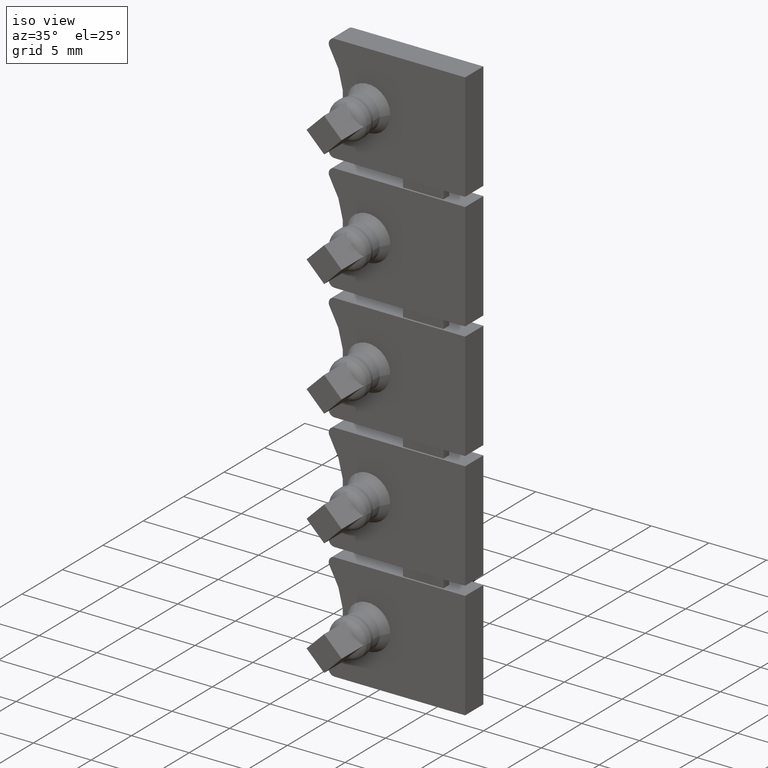
[diagram: clean part render]
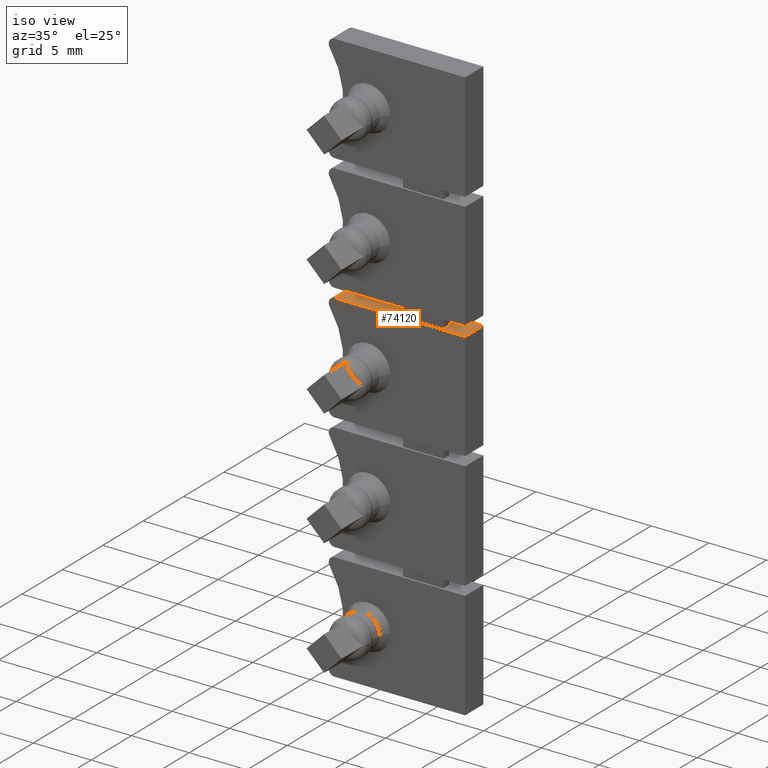
[diagram: same view with one face highlighted and labeled with its STEP entity id]
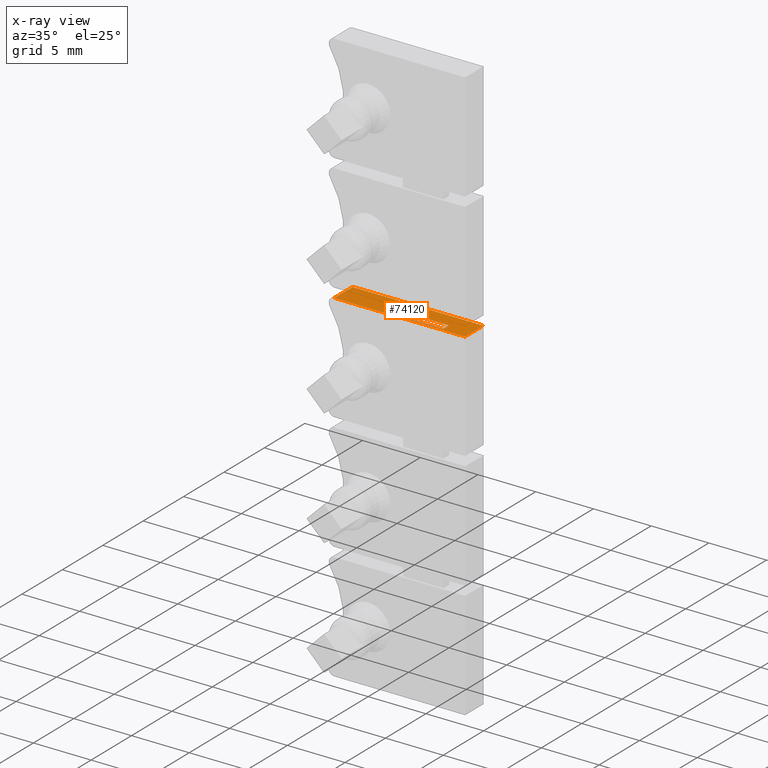
[diagram: x-ray of the same camera — body ghosted, the highlighted face saturated]
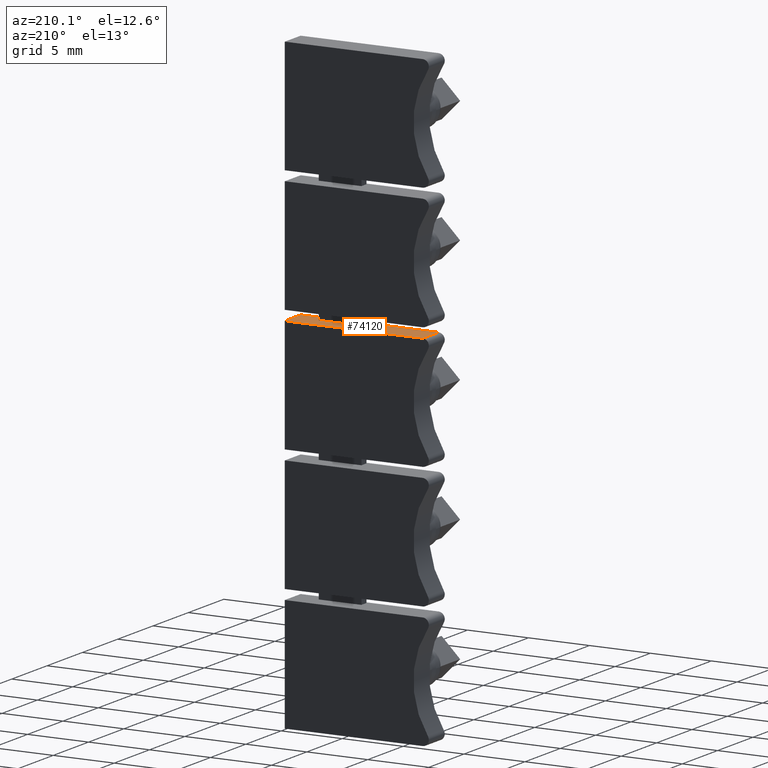
[diagram: same view with one face highlighted and labeled with its STEP entity id]
A machine part, iso view. The second image highlights one B-rep face of the part: STEP entity #74120.
The next image is the same camera in x-ray: the body ghosted, the highlighted face saturated — about 0% of this face is hidden behind the body in this view.
A second angle (auxiliary view) of the same face is appended — the face is thin or edge-on in the first view.
In plain terms, the highlighted planar face has unit normal (0, -0, -1).
Its self-contained STEP definition (entity closure, byte-faithful):
#23100=CARTESIAN_POINT('',(-9.22161674199827,43.6954101153219,
40.1249999972799));
#23110=VERTEX_POINT('',#23100);
#23190=CARTESIAN_POINT('',(-12.721616741999,43.6954101153373,
40.1249999972799));
#23200=VERTEX_POINT('',#23190);
#23230=CARTESIAN_POINT('',(-18.2837265971451,43.6954101153616,
40.1249999972799));
#23240=DIRECTION('',(-1.,4.37360856649983E-12,0.));
#23250=VECTOR('',#23240,1.);
#23260=LINE('',#23230,#23250);
#23270=EDGE_CURVE('',#23110,#23200,#23260,.T.);
#36960=CARTESIAN_POINT('',(-9.2216167420014,42.9787434470685,
40.1249999972799));
#36970=VERTEX_POINT('',#36960);
#37020=CARTESIAN_POINT('',(-9.22161674200213,42.81207678041,
40.1249999972799));
#37030=DIRECTION('',(-4.37360856649983E-12,-1.,0.));
#37040=VECTOR('',#37030,1.);
#37050=LINE('',#37020,#37040);
#37060=EDGE_CURVE('',#23110,#36970,#37050,.T.);
#39620=CARTESIAN_POINT('',(-12.7216167420021,42.9787434470838,
40.1249999972799));
#39630=VERTEX_POINT('',#39620);
#39660=CARTESIAN_POINT('',(-12.7216167420029,42.8120767804253,
40.1249999972799));
#39670=DIRECTION('',(-4.37360856649983E-12,-1.,0.));
#39680=VECTOR('',#39670,1.);
#39690=LINE('',#39660,#39680);
#39700=EDGE_CURVE('',#23200,#39630,#39690,.T.);
#73620=CARTESIAN_POINT('',(-10.721616742033,35.7630743805516,
40.1249999972799));
#73630=DIRECTION('',(0.,-0.,-1.));
#73640=DIRECTION('',(1.,-4.37360856649983E-12,0.));
#73650=AXIS2_PLACEMENT_3D('',#73620,#73630,#73640);
#73660=PLANE('',#73650);
#73670=ORIENTED_EDGE('',*,*,#37060,.T.);
#73680=ORIENTED_EDGE('',*,*,#23270,.F.);
#73690=ORIENTED_EDGE('',*,*,#39700,.F.);
#73700=CARTESIAN_POINT('',(-18.2837265971482,42.9787434471082,
40.1249999972799));
#73710=DIRECTION('',(1.,-4.37360856649983E-12,0.));
#73720=VECTOR('',#73710,1.);
#73730=LINE('',#73700,#73720);
#73740=EDGE_CURVE('',#39630,#36970,#73730,.T.);
#73750=ORIENTED_EDGE('',*,*,#73740,.F.);
#73760=EDGE_LOOP('',(#73750,#73690,#73680,#73670));
#73770=FACE_BOUND('',#73760,.T.);
#73780=CARTESIAN_POINT('',(-18.2837265971489,42.8120767804496,
40.1249999972799));
#73790=DIRECTION('',(-1.,4.37360856649983E-12,0.));
#73800=VECTOR('',#73790,1.);
#73810=LINE('',#73780,#73800);
#73820=CARTESIAN_POINT('',(-7.22161674200213,42.8120767804012,
40.1249999972799));
#73830=VERTEX_POINT('',#73820);
#73840=CARTESIAN_POINT('',(-18.5414452020465,42.8120767804508,
40.1249999972799));
#73850=VERTEX_POINT('',#73840);
#73860=EDGE_CURVE('',#73830,#73850,#73810,.T.);
#73870=ORIENTED_EDGE('',*,*,#73860,.F.);
#73880=CARTESIAN_POINT('',(-18.5414452020773,35.7630743805853,
40.1249999972799));
#73890=DIRECTION('',(4.37360856649983E-12,1.,0.));
#73900=VECTOR('',#73890,1.);
#73910=LINE('',#73880,#73900);
#73920=CARTESIAN_POINT('',(-18.5414452020366,45.0620767804508,
40.1249999972799));
#73930=VERTEX_POINT('',#73920);
#73940=EDGE_CURVE('',#73850,#73930,#73910,.T.);
#73950=ORIENTED_EDGE('',*,*,#73940,.F.);
#73960=CARTESIAN_POINT('',(-18.2837265971391,45.0620767804496,
40.1249999972799));
#73970=DIRECTION('',(-1.,4.37360856649983E-12,0.));
#73980=VECTOR('',#73970,1.);
#73990=LINE('',#73960,#73980);
#74000=CARTESIAN_POINT('',(-7.22161674199229,45.0620767804012,
40.1249999972799));
#74010=VERTEX_POINT('',#74000);
#74020=EDGE_CURVE('',#74010,#73930,#73990,.T.);
#74030=ORIENTED_EDGE('',*,*,#74020,.T.);
#74040=CARTESIAN_POINT('',(-7.22161674200213,42.8120767804012,
40.1249999972799));
#74050=DIRECTION('',(-4.37360856649983E-12,-1.,0.));
#74060=VECTOR('',#74050,1.);
#74070=LINE('',#74040,#74060);
#74080=EDGE_CURVE('',#74010,#73830,#74070,.T.);
#74090=ORIENTED_EDGE('',*,*,#74080,.F.);
#74100=EDGE_LOOP('',(#74090,#74030,#73950,#73870));
#74110=FACE_OUTER_BOUND('',#74100,.T.);
#74120=ADVANCED_FACE('',(#73770,#74110),#73660,.F.);